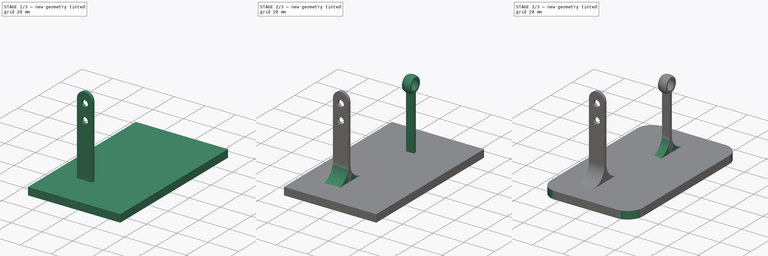
[diagram: build sequence overview — one tinted view per stage of 3, left to right]
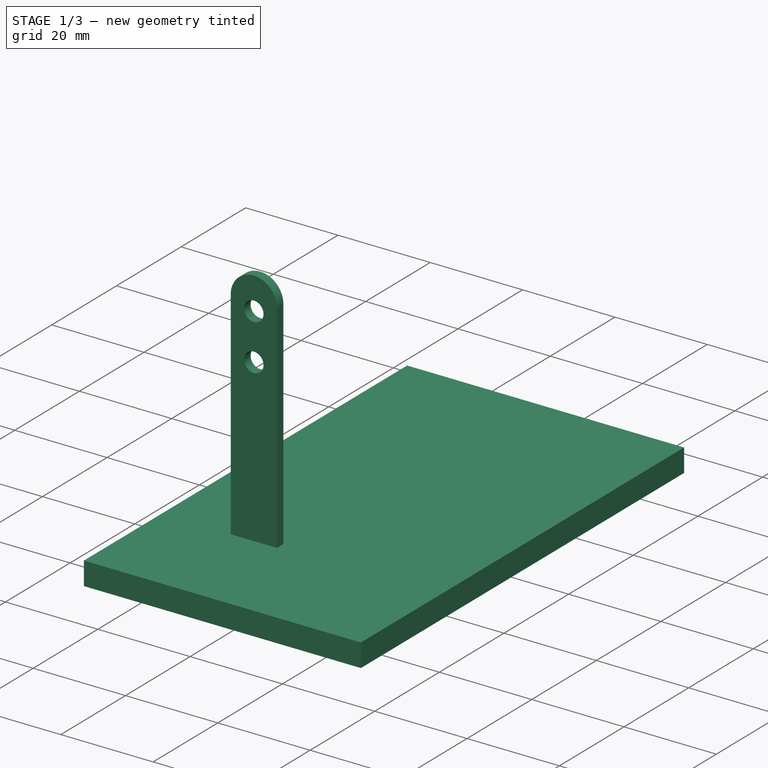
[diagram: stage 1 of 3 — iso view after this stage's code; geometry added in this stage tinted green]
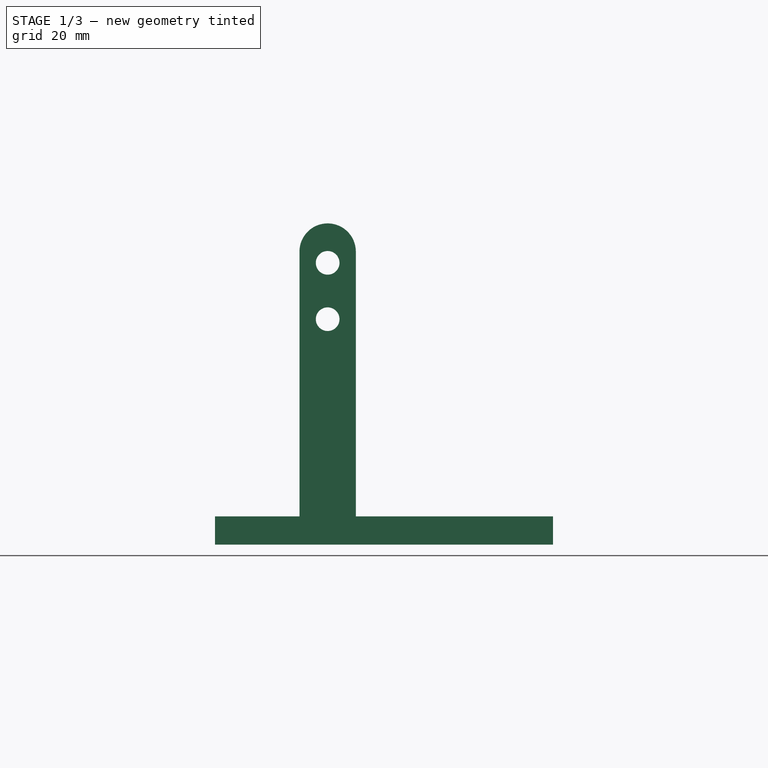
[diagram: stage 1 of 3 — front view after this stage's code; geometry added in this stage tinted green]
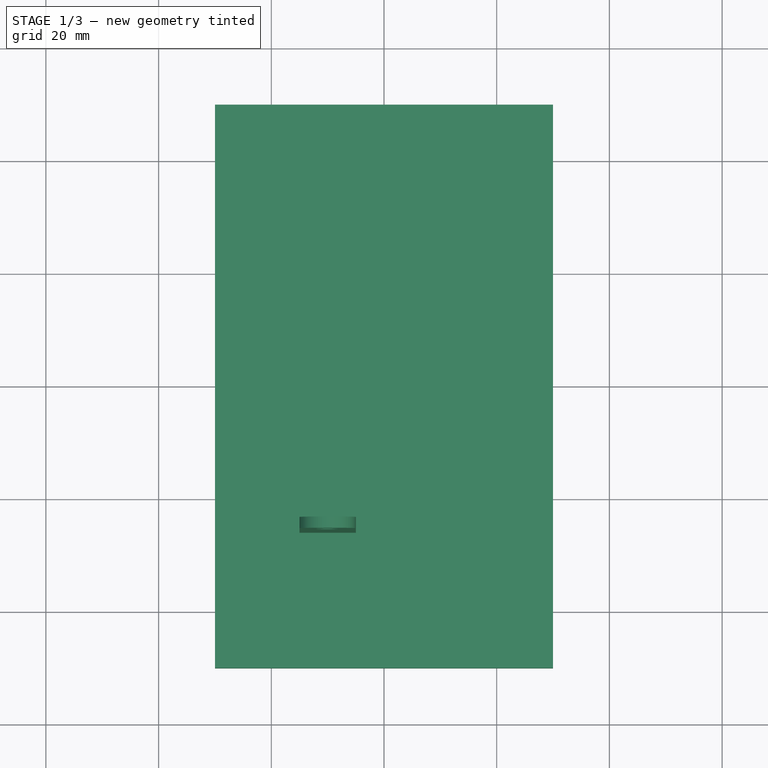
[diagram: stage 1 of 3 — top view after this stage's code; geometry added in this stage tinted green]
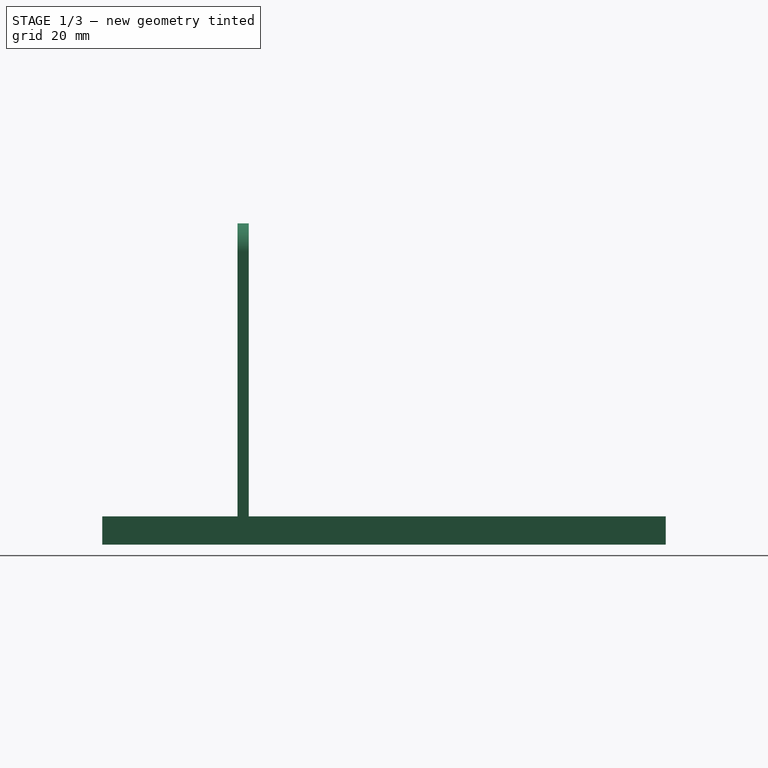
[diagram: stage 1 of 3 — right view after this stage's code; geometry added in this stage tinted green]
FCSTD DOCUMENT  (FreeCAD 0.19R24366 (Git))
Label: base
License: All rights reserved
LicenseURL: http://en.wikipedia.org/wiki/All_rights_reserved
objects: Sketcher::SketchObject×4, PartDesign::Pad×3, PartDesign::Fillet×3, PartDesign::Plane×2, Spreadsheet::Sheet×1, PartDesign::Line×1, PartDesign::Revolution×1, PartDesign::Body×1
note: 22 computed .brp shape members not serialized (recipe doc carries the construction recipe); baked Part::Feature solids carry a one-line shape summary decoded from their .brp

FEATURE [Spreadsheet::Sheet] Spreadsheet
  cells = A1=Length; B1(Length)==100mm; A2=Width; B2(Width)==60mm; A3=Thickness; B3(Thickness)==5mm; A4=FilletRadius; B4(FilletRadius)==10mm; A5=MountFilletRadius; B5(MountFilletRadius)==10mm; A7=NominalActuatorLength; B7(NominalActuatorLength)==50mm; A8=ActuatorDistance; B8(ActuatorDistance)==10mm; A9=ActuatorMountWidth; B9(ActuatorMountWidth)==10mm; A10=ActuatorMountLength; B10(ActuatorMountLength)==2mm; A11=ActuatorMountHeight; B11(ActuatorMountHeight)==52mm; A12=UpperActuatorHeight; B12(UpperActuatorHeight)==45mm; A13=LowerActuatorHeight; B13(LowerActuatorHeight)==35mm; A14=ActuatorBallDiameter; B14(ActuatorBallDiameter)==4.2mm; A16=WingHeight; B16(WingHeight)==40mm; A17=WingMountBaseHeight; B17(WingMountBaseHeight)==WingHeight - 0.5 * WingBallDiameter - 0.05 * WingBallMountThickness; A18=WingMountBaseWidth; B18(WingMountBaseWidth)==5mm; A19=WingMountBaseLength; B19(WingMountBaseLength)==2mm; A20=WingBallDiameter; B20(WingBallDiameter)==8.5mm; A21=WingBallMountlThickness; B21(WingBallMountThickness)==1mm; A22=WingBallMountAngle; B22(WingBallMountAngle)==80deg
FEATURE [Sketcher::SketchObject] Sketch
  FullyConstrained = true
  MapMode = 5
  Support = -> [XY_Plane]
  expr: Constraints[9] = Spreadsheet.Width
  expr: Constraints[10] = Spreadsheet.Length
  sketch-geometry (4):
    g0: LineSegment StartX=-30 StartY=50 StartZ=0 EndX=30 EndY=50 EndZ=0
    g1: LineSegment StartX=30 StartY=50 StartZ=0 EndX=30 EndY=-50 EndZ=0
    g2: LineSegment StartX=30 StartY=-50 StartZ=0 EndX=-30 EndY=-50 EndZ=0
    g3: LineSegment StartX=-30 StartY=-50 StartZ=0 EndX=-30 EndY=50 EndZ=0
  constraints (11):
    c: Coincident(g0,g1)
    c: Coincident(g1,g2)
    c: Coincident(g2,g3)
    c: Coincident(g3,g0)
    c: Horizontal(g0)
    c: Horizontal(g2)
    c: Vertical(g1)
    c: Vertical(g3)
    c: Symmetric(g0,g1,g-1)
    c: Distance(g2) = 60
    c: Distance(g1) = 100
FEATURE [PartDesign::Pad] Pad
  Direction = (1,1,1)
  Length = 5
  Length2 = 100
  Profile = -> Sketch
  Type = 0
  expr: Length = Spreadsheet.Thickness
FEATURE [PartDesign::Plane] DatumPlane  label="WingDatumPlane"
  AttachmentOffset = pos=(0,0,-25) rot=(0,0,1;0rad)
  Length = 74.0254
  MapMode = 5
  Placement = pos=(0,25,5.6e-15) rot=(1,0,0;1.5708rad)
  ResizeMode = 0
  Support = -> [XZ_Plane]
  Width = 95.989
  expr: .AttachmentOffset.Base.z = -0.5 * Spreadsheet.NominalActuatorLength
FEATURE [PartDesign::Plane] DatumPlane001  label="ActuatorDatumPlane"
  AttachmentOffset = pos=(0,0,25) rot=(0,0,1;0rad)
  Length = 74.0254
  MapMode = 5
  Placement = pos=(0,-25,-5.6e-15) rot=(1,0,0;1.5708rad)
  ResizeMode = 0
  Support = -> [XZ_Plane]
  Width = 95.989
  expr: .AttachmentOffset.Base.z = 0.5 * Spreadsheet.NominalActuatorLength
FEATURE [Sketcher::SketchObject] Sketch001
  FullyConstrained = true
  MapMode = 5
  Placement = pos=(0,-25,-5.6e-15) rot=(1,0,0;1.5708rad)
  Support = -> [DatumPlane001]
  expr: Constraints[3] = Spreadsheet.Thickness
  expr: Constraints[4] = Spreadsheet.ActuatorDistance
  expr: Constraints[32] = Spreadsheet.ActuatorMountHeight
  expr: Constraints[28] = Spreadsheet.ActuatorBallDiameter
  expr: Constraints[15] = Spreadsheet.ActuatorMountWidth
  expr: Constraints[23] = Spreadsheet.LowerActuatorHeight
  expr: Constraints[24] = Spreadsheet.UpperActuatorHeight
  sketch-geometry (12):
    g0: LineSegment StartX=0 StartY=0 StartZ=0 EndX=0 EndY=5 EndZ=0
    g1: LineSegment StartX=0 StartY=5 StartZ=0 EndX=-10 EndY=5 EndZ=0
    g2: LineSegment StartX=-15 StartY=52 StartZ=0 EndX=-5 EndY=52 EndZ=0
    g3: LineSegment StartX=-5 StartY=52 StartZ=0 EndX=-5 EndY=5 EndZ=0
    g4: LineSegment StartX=-5 StartY=5 StartZ=0 EndX=-15 EndY=5 EndZ=0
    g5: LineSegment StartX=-15 StartY=5 StartZ=0 EndX=-15 EndY=52 EndZ=0
    g6: ArcOfCircle CenterX=-10 CenterY=52 CenterZ=0 NormalX=0 NormalY=0 NormalZ=1 AngleXU=0 Radius=5 StartAngle=-1.255e-12 EndAngle=3.14159
    g7: LineSegment StartX=-10 StartY=5 StartZ=0 EndX=-10 EndY=40 EndZ=0
    g8: LineSegment StartX=-10 StartY=50 StartZ=0 EndX=-10 EndY=40 EndZ=0
    g9: Circle CenterX=-10 CenterY=50 CenterZ=0 NormalX=0 NormalY=0 NormalZ=1 AngleXU=0 Radius=2.1
    g10: Circle CenterX=-10 CenterY=40 CenterZ=0 NormalX=0 NormalY=0 NormalZ=1 AngleXU=0 Radius=2.1
    g11: LineSegment StartX=-10 StartY=52 StartZ=0 EndX=-10 EndY=57 EndZ=0
  constraints (33):
    c: Vertical(g0)
    c: Coincident(g0,g1)
    c: Horizontal(g1)
    c: Distance(g0) = 5
    c: Distance(g1) = 10
    c: Coincident(g0,g-1)
    c: Coincident(g2,g3)
    c: Coincident(g3,g4)
    c: Coincident(g4,g5)
    c: Coincident(g5,g2)
    c: Horizontal(g2)
    c: Horizontal(g4)
    c: Vertical(g3)
    c: Vertical(g5)
    c: Symmetric(g4,g3,g1)
    c: Distance(g4,g3) = 10
    c: Coincident(g6,g3)
    c: Coincident(g6,g5)
    c: PointOnObject(g6,g2)
    c: Vertical(g7)
    c: Coincident(g7,g1)
    c: Vertical(g8)
    c: Coincident(g8,g7)
    c: Distance(g7) = 35
    c: Distance(g8,g1) = 45
    c: Coincident(g10,g7)
    c: Coincident(g9,g8)
    c: Equal(g9,g10)
    c: Diameter(g9) = 4.2
    c: Vertical(g11)
    c: Coincident(g11,g6)
    c: PointOnObject(g11,g6)
    c: DistanceY(g4,g11) = 52
FEATURE [PartDesign::Pad] Pad001
  BaseFeature = -> Pad
  Direction = (1,1,1)
  Length = 2
  Length2 = 100
  Midplane = true
  Profile = -> Sketch001
  Type = 0
  expr: Length = Spreadsheet.ActuatorMountLength
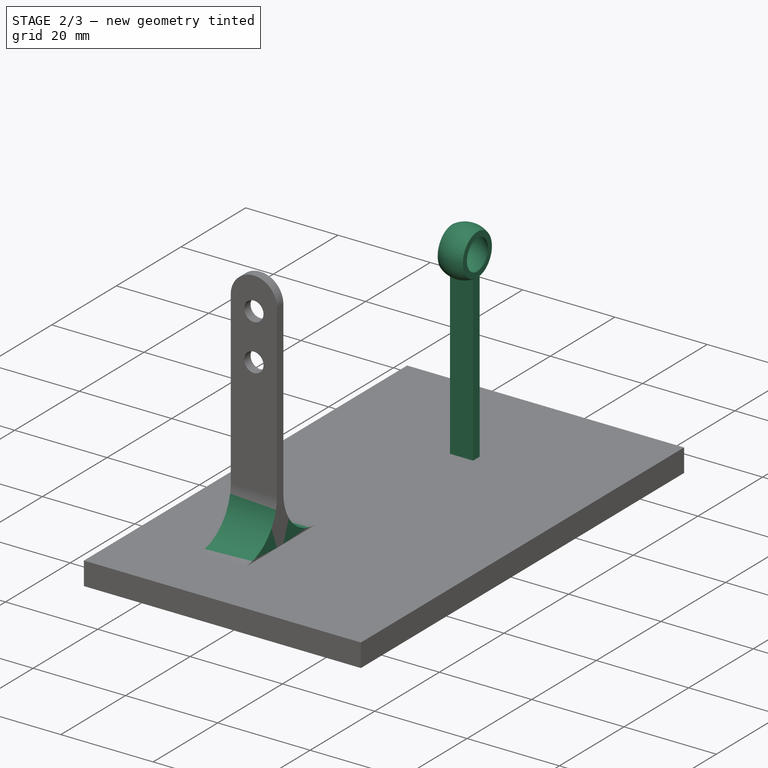
[diagram: stage 2 of 3 — iso view after this stage's code; geometry added in this stage tinted green]
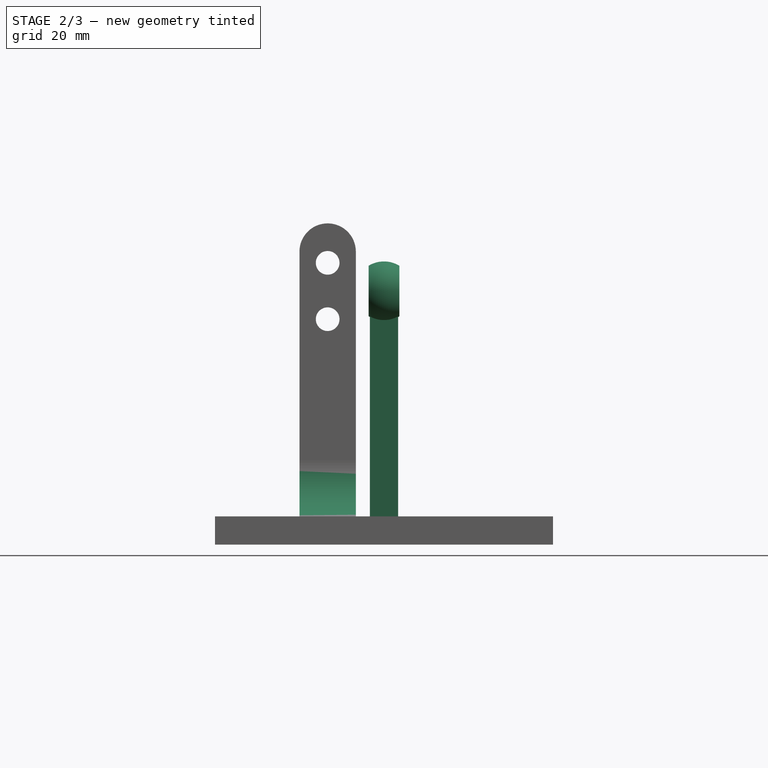
[diagram: stage 2 of 3 — front view after this stage's code; geometry added in this stage tinted green]
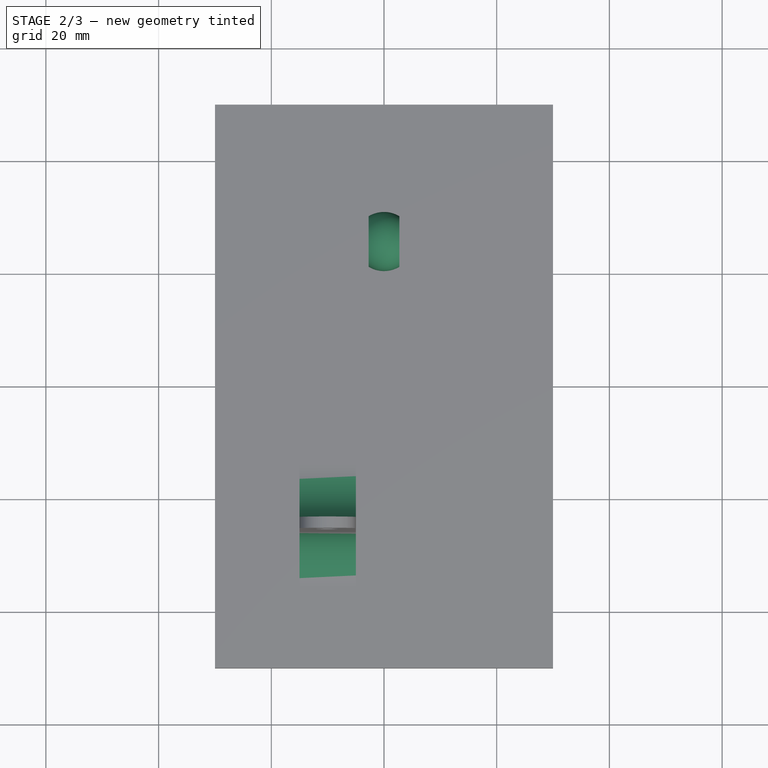
[diagram: stage 2 of 3 — top view after this stage's code; geometry added in this stage tinted green]
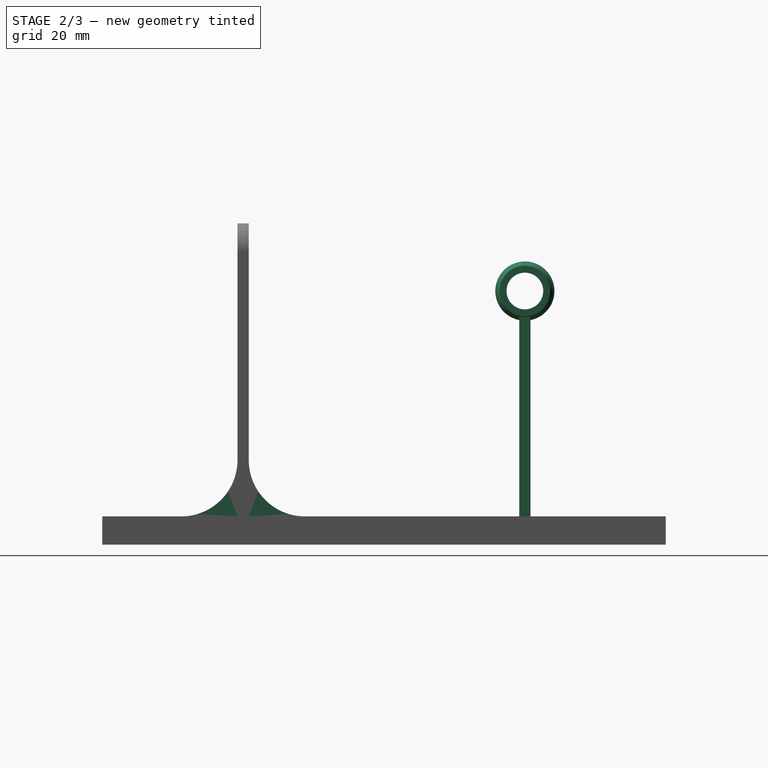
[diagram: stage 2 of 3 — right view after this stage's code; geometry added in this stage tinted green]
FEATURE [Sketcher::SketchObject] Sketch002
  FullyConstrained = true
  MapMode = 5
  Placement = pos=(0,25,5.6e-15) rot=(1,0,0;1.5708rad)
  Support = -> [DatumPlane]
  expr: Constraints[2] = Spreadsheet.Thickness
  expr: Constraints[12] = Spreadsheet.WingMountBaseHeight
  expr: Constraints[13] = Spreadsheet.WingMountBaseWidth
  sketch-geometry (5):
    g0: LineSegment StartX=0 StartY=0 StartZ=0 EndX=0 EndY=5 EndZ=0
    g1: LineSegment StartX=-2.5 StartY=40.7 StartZ=0 EndX=2.5 EndY=40.7 EndZ=0
    g2: LineSegment StartX=2.5 StartY=40.7 StartZ=0 EndX=2.5 EndY=5 EndZ=0
    g3: LineSegment StartX=2.5 StartY=5 StartZ=0 EndX=-2.5 EndY=5 EndZ=0
    g4: LineSegment StartX=-2.5 StartY=5 StartZ=0 EndX=-2.5 EndY=40.7 EndZ=0
  constraints (14):
    c: Vertical(g0)
    c: Coincident(g-1,g0)
    c: Distance(g0) = 5
    c: Coincident(g1,g2)
    c: Coincident(g2,g3)
    c: Coincident(g3,g4)
    c: Coincident(g4,g1)
    c: Horizontal(g1)
    c: Horizontal(g3)
    c: Vertical(g2)
    c: Vertical(g4)
    c: Symmetric(g3,g2,g0)
    c: Distance(g2) = 35.7
    c: Distance(g3,g2) = 5
FEATURE [PartDesign::Pad] Pad002
  BaseFeature = -> Pad001
  Direction = (1,1,1)
  Length = 2
  Length2 = 100
  Midplane = true
  Profile = -> Sketch002
  Type = 0
  expr: Length = Spreadsheet.WingMountBaseLength
FEATURE [Sketcher::SketchObject] Sketch003
  FullyConstrained = true
  MapMode = 5
  Placement = pos=(0,25,5.6e-15) rot=(1,0,0;1.5708rad)
  Support = -> [DatumPlane]
  expr: Constraints[27] = Spreadsheet.WingHeight
  expr: Constraints[4] = Spreadsheet.Thickness
  expr: Constraints[26] = 0.5 * Spreadsheet.WingBallDiameter
  expr: Constraints[16] = Spreadsheet.WingBallMountAngle
  expr: Constraints[19] = Spreadsheet.WingBallMountThickness
  sketch-geometry (11):
    g0: LineSegment StartX=0 StartY=0 StartZ=0 EndX=0 EndY=5 EndZ=0
    g1: LineSegment StartX=0 StartY=5 StartZ=0 EndX=0 EndY=45 EndZ=0
    g2: ArcOfCircle CenterX=0 CenterY=45 CenterZ=0 NormalX=0 NormalY=0 NormalZ=1 AngleXU=0 Radius=4.25 StartAngle=0.872665 EndAngle=2.26893
    g3: LineSegment StartX=0 StartY=45 StartZ=0 EndX=0 EndY=49.25 EndZ=0
    g4: LineSegment StartX=-2.73185 StartY=48.2557 StartZ=0 EndX=2.73185 EndY=48.2557 EndZ=0
    g5: LineSegment StartX=-2.73185 StartY=48.2557 StartZ=0 EndX=0 EndY=45 EndZ=0
    g6: LineSegment StartX=0 StartY=45 StartZ=0 EndX=2.73185 EndY=48.2557 EndZ=0
    g7: LineSegment StartX=0 StartY=49.25 StartZ=0 EndX=0 EndY=50.25 EndZ=0
    g8: ArcOfCircle CenterX=0 CenterY=45 CenterZ=0 NormalX=0 NormalY=0 NormalZ=1 AngleXU=0 Radius=5.25 StartAngle=1.02353 EndAngle=2.11806
    g9: LineSegment StartX=-2.73185 StartY=49.4832 StartZ=0 EndX=-2.73185 EndY=48.2557 EndZ=0
    g10: LineSegment StartX=2.73185 StartY=48.2557 StartZ=0 EndX=2.73185 EndY=49.4832 EndZ=0
  constraints (30):
    c: Vertical(g0)
    c: Coincident(g0,g1)
    c: Vertical(g1)
    c: Coincident(g-1,g0)
    c: Distance(g0) = 5
    c: Coincident(g2,g1)
    c: Vertical(g3)
    c: Coincident(g2,g3)
    c: PointOnObject(g3,g2)
    c: Horizontal(g4)
    c: Coincident(g4,g2)
    c: Coincident(g4,g2)
    c: Coincident(g6,g2)
    c: Coincident(g5,g2)
    c: Coincident(g5,g2)
    c: Coincident(g6,g2)
    c: Angle(g2) = 1.39626
    c: Coincident(g3,g7)
    c: Vertical(g7)
    c: Distance(g7) = 1
    c: Coincident(g8,g2)
    c: PointOnObject(g7,g8)
    c: Coincident(g9,g2)
    c: Coincident(g2,g10)
    c: Coincident(g10,g8)
    c: Coincident(g9,g8)
    c: Radius(g2) = 4.25
    c: Distance(g1) = 40
    c: Vertical(g9)
    c: Vertical(g10)
FEATURE [PartDesign::Line] DatumLine
  AttacherType = Attacher::AttachEngineLine
  AttachmentOffset = pos=(45,0,0) rot=(0,0,1;0rad)
  Length = 20
  MapMode = 16
  Placement = pos=(1e-14,25,45) rot=(0.707107,0,0.707107;3.14159rad)
  ResizeMode = 0
  Support = -> [DatumPlane]
  expr: .AttachmentOffset.Base.x = Spreadsheet.WingHeight + Spreadsheet.Thickness
FEATURE [PartDesign::Revolution] Revolution
  Angle = 360
  Axis = (1,0,-2e-16)
  Base = (1e-14,25,45)
  BaseFeature = -> Pad002
  Profile = -> Sketch003
  ReferenceAxis = -> DatumLine
FEATURE [PartDesign::Fillet] Fillet
  Base = -> Revolution [Edge15,Edge14]
  BaseFeature = -> Revolution
  Radius = 10
  SupportTransform = false
  expr: Radius = Spreadsheet.MountFilletRadius
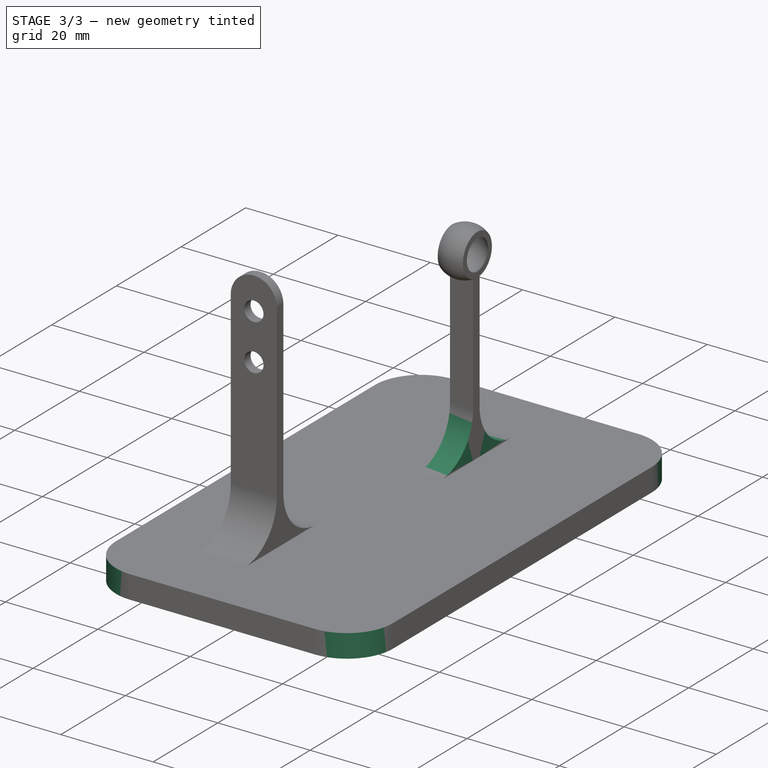
[diagram: stage 3 of 3 — iso view after this stage's code; geometry added in this stage tinted green]
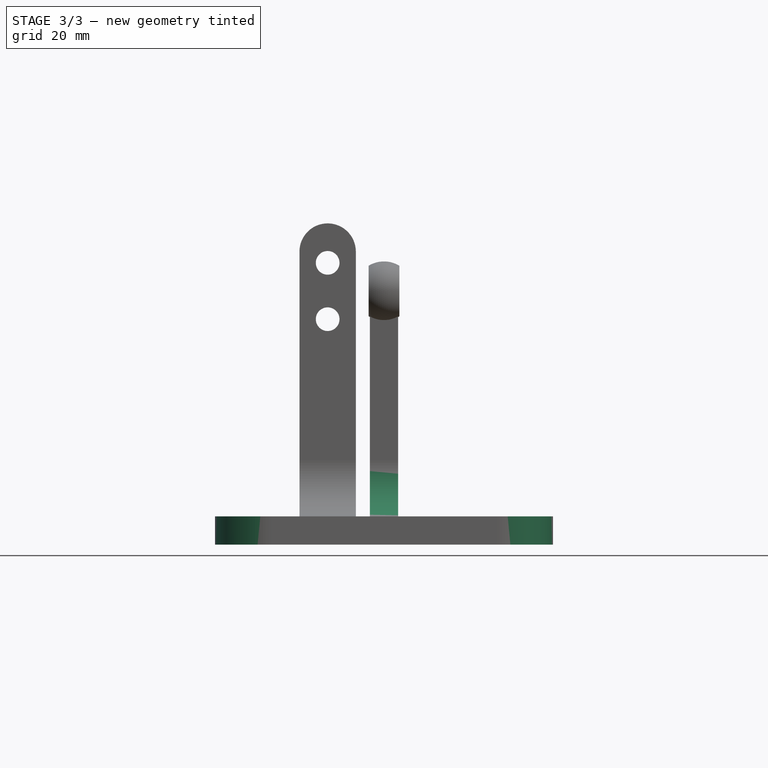
[diagram: stage 3 of 3 — front view after this stage's code; geometry added in this stage tinted green]
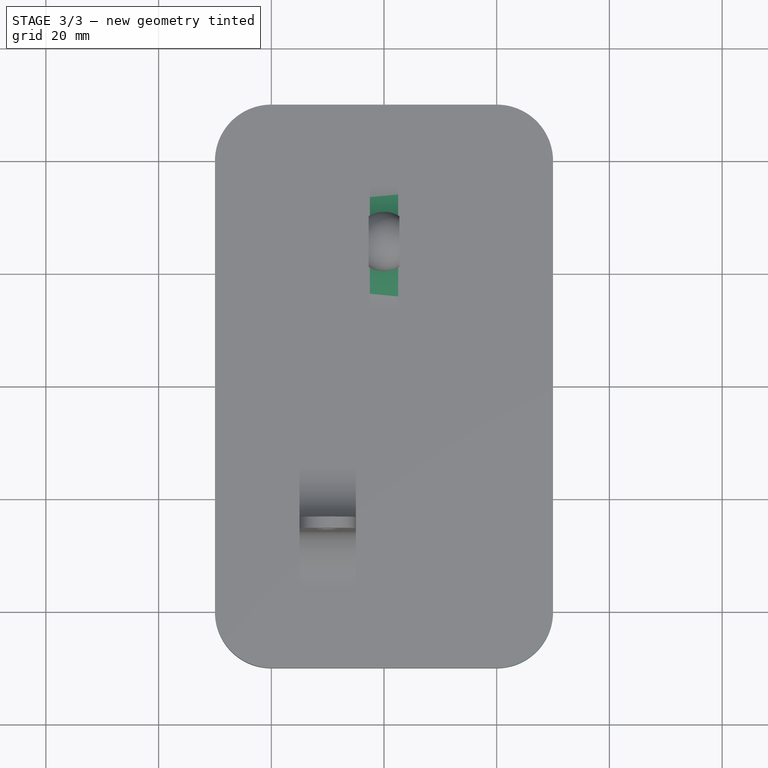
[diagram: stage 3 of 3 — top view after this stage's code; geometry added in this stage tinted green]
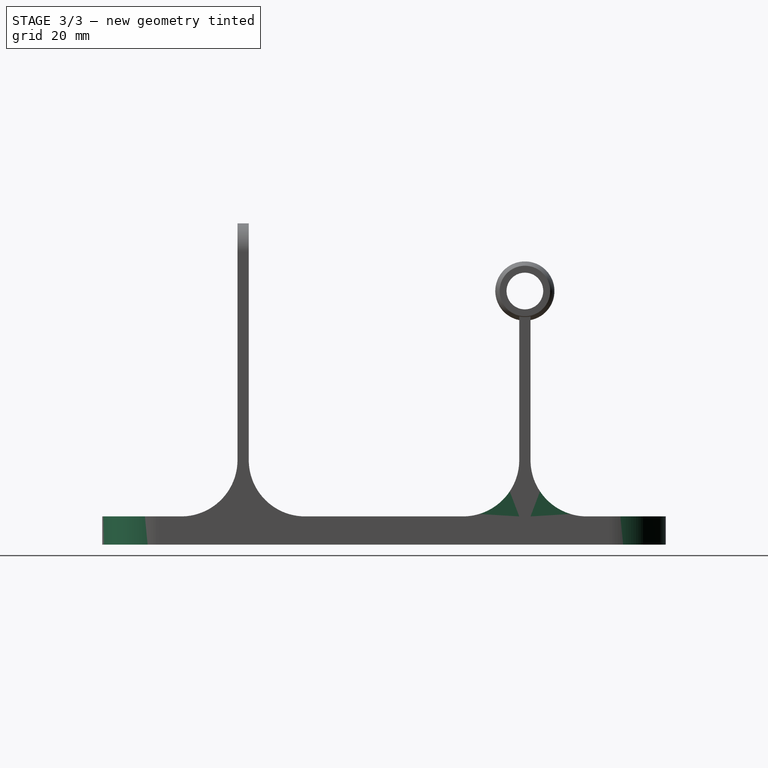
[diagram: stage 3 of 3 — right view after this stage's code; geometry added in this stage tinted green]
FEATURE [PartDesign::Fillet] Fillet001
  Base = -> Fillet [Edge14,Edge16]
  BaseFeature = -> Fillet
  Radius = 10
  SupportTransform = false
  expr: Radius = Spreadsheet.MountFilletRadius
FEATURE [PartDesign::Fillet] Fillet002
  Base = -> Fillet001 [Edge48,Edge45,Edge46,Edge50]
  BaseFeature = -> Fillet001
  Radius = 10
  SupportTransform = false
  expr: Radius = Spreadsheet.FilletRadius
FEATURE [PartDesign::Body] Body
  Group = -> [Sketch,Pad,DatumPlane,DatumPlane001,Sketch001,Pad001,Sketch002,Pad002,Sketch003,DatumLine,Revolution,Fillet,Fillet001,Fillet002]
  Origin = -> Origin
  Tip = -> Fillet002
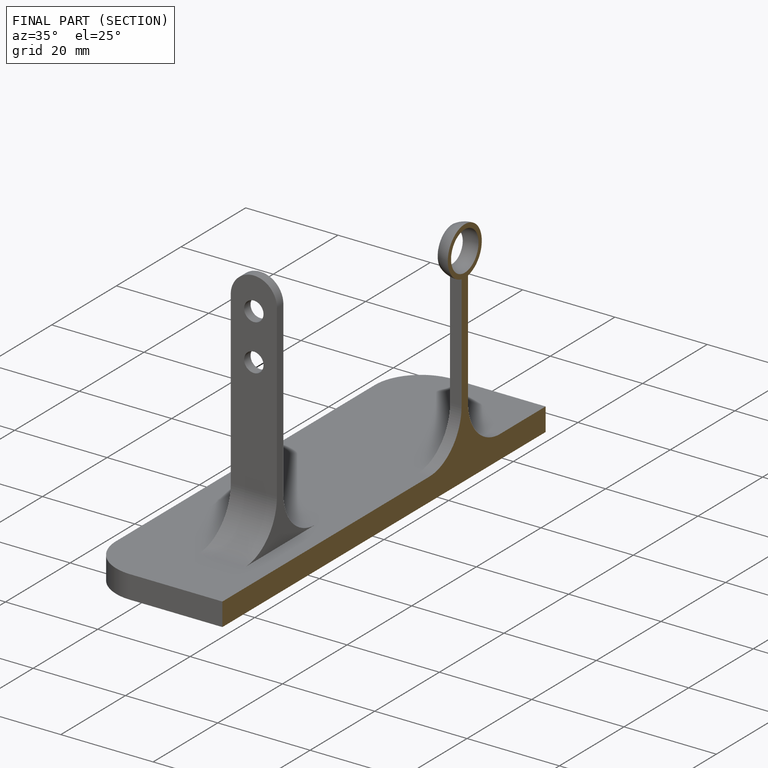
[diagram: finished part — half-section view (interior)]
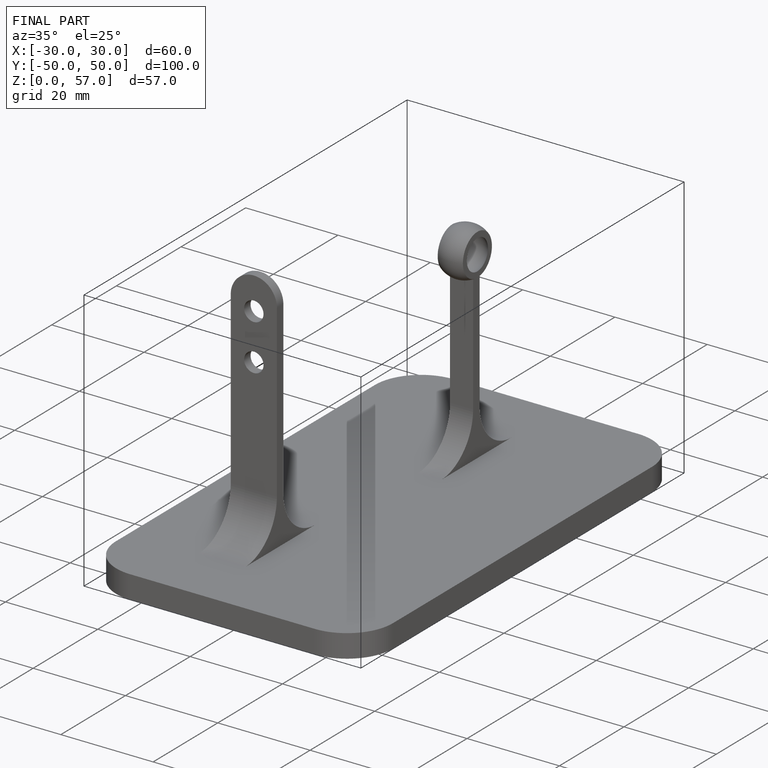
[diagram: finished part — iso view with bounding-box wireframe]
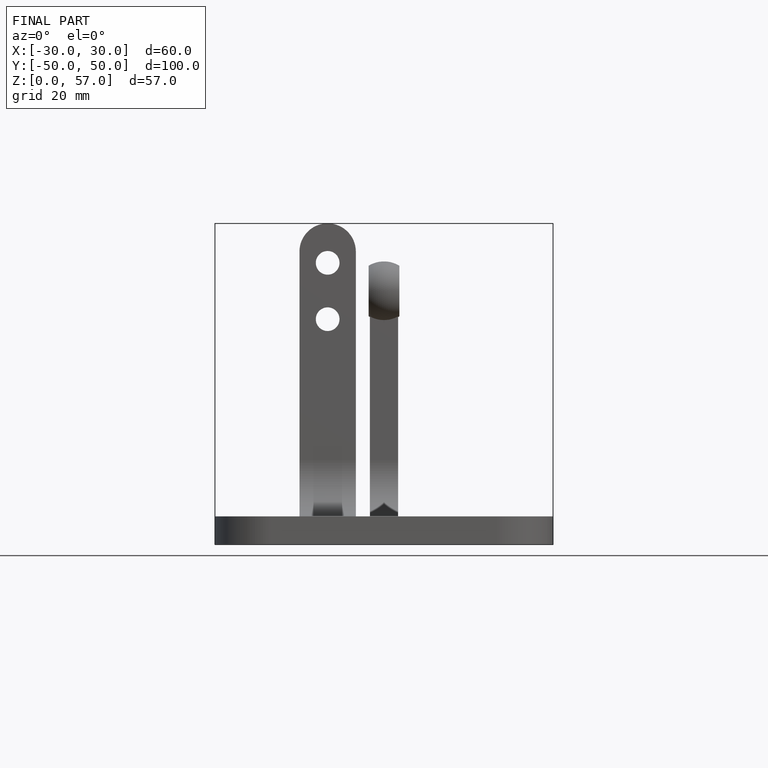
[diagram: finished part — front view with bounding-box wireframe]
